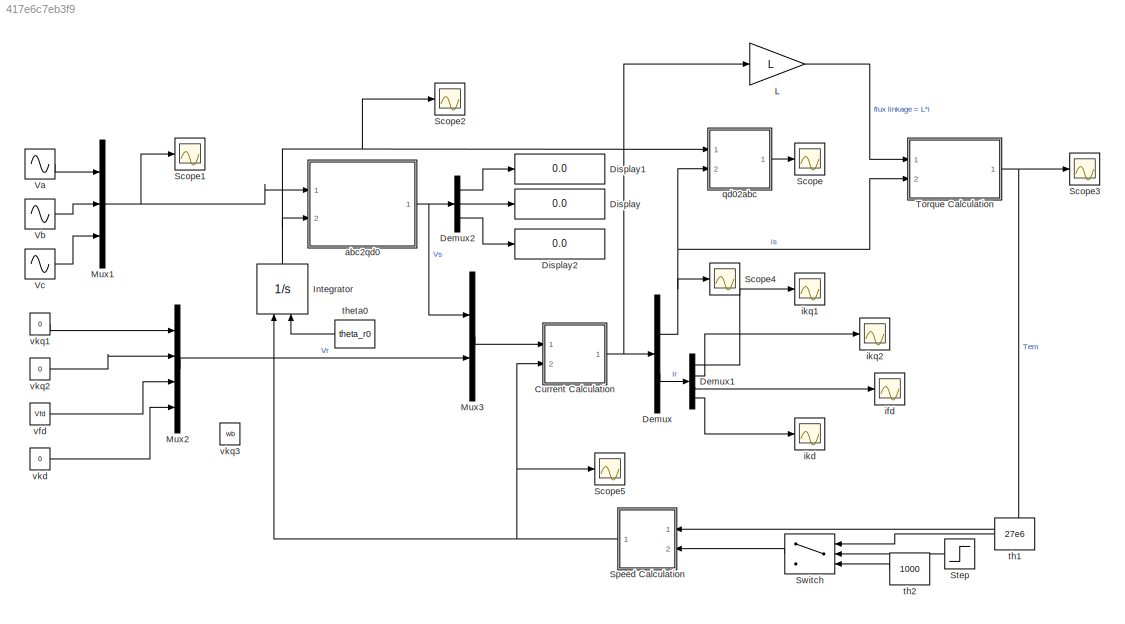
MODEL slx_417e6c7eb3f9
KIND model
CONFIG AbsTol = auto
CONFIG EnableMultiTasking = off
CONFIG FixedStep = auto
CONFIG MaxStep = auto
CONFIG MinStep = auto
CONFIG RelTol = 1e-6
CONFIG SampleTimeConstraint = Unconstrained
CONFIG Solver = ode23
CONFIG SolverName = ode23
CONFIG StartTime = 0.0
CONFIG StopTime = 20
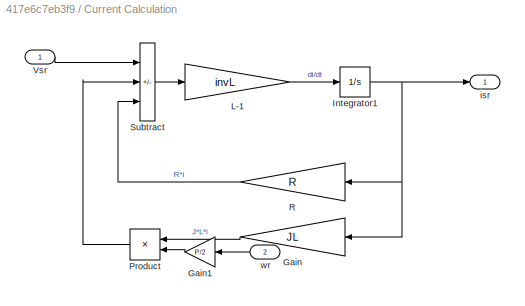
BLOCK [SubSystem] Current Calculation
  Ports = [2, 1]
  RequestExecContextInheritance = off
BLOCK [Gain] Current Calculation/Gain
  Gain = JL
  Multiplication = Matrix(K*u) (u vector)
BLOCK [Gain] Current Calculation/Gain1
  Gain = P/2
BLOCK [Integrator] Current Calculation/Integrator1
  InitialCondition = [iqs;ids;0;0;0;i_f;0]
  Ports = [1, 1]
BLOCK [Gain] Current Calculation/L-1
  Gain = invL
  Multiplication = Matrix(K*u) (u vector)
BLOCK [Product] Current Calculation/Product
  Ports = [2, 1]
BLOCK [Gain] Current Calculation/R
  Gain = R
  Multiplication = Matrix(K*u) (u vector)
BLOCK [Sum] Current Calculation/Subtract
  IconShape = rectangular
  Inputs = +--
  Ports = [3, 1]
BLOCK [Inport] Current Calculation/Vsr
BLOCK [Outport] Current Calculation/isr
BLOCK [Inport] Current Calculation/wr
  Port = 2
BLOCK [Demux] Demux
  Outputs = [3 4]
  Ports = [1, 2]
BLOCK [Demux] Demux1
  Ports = [1, 4]
BLOCK [Demux] Demux2
  Outputs = 3
  Ports = [1, 3]
BLOCK [Display] Display
  Decimation = 1
  Ports = [1]
BLOCK [Display] Display1
  Decimation = 1
  Ports = [1]
BLOCK [Display] Display2
  Decimation = 1
  Ports = [1]
BLOCK [Integrator] Integrator
  InitialConditionSource = external
  NameLocation = right
  Ports = [2, 1]
BLOCK [Gain] L
  Gain = L
  Multiplication = Matrix(K*u) (u vector)
BLOCK [Mux] Mux1
  DisplayOption = bar
  Inputs = 3
  Ports = [3, 1]
BLOCK [Mux] Mux2
  DisplayOption = bar
  Ports = [4, 1]
BLOCK [Mux] Mux3
  DisplayOption = bar
  Inputs = [3 4]
  Ports = [2, 1]
BLOCK [Scope] Scope
  Floating = off
  NumInputPorts = 1
  Ports = [1]
  ScopeSpecificationString = Simulink.scopes.TimeScopeBlockCfg('CurrentConfiguration', extmgr.ConfigurationSet(extmgr.Configuration('Core','General UI',true),extmgr.Configuration('Core','Source UI',true),extmgr.Configuration('Sources','WiredSimulink',true,'SampleTime','0.001'),extmgr.Configuration('Visuals','Time Domain',true,'SerializedDisplays',{struct('MinYLimReal','-20057.24735','MaxYLimReal','20045.93005','YLabelReal',''...<+1502ch>
BLOCK [Scope] Scope1
  Floating = off
  NumInputPorts = 1
  Ports = [1]
  ScopeSpecificationString = Simulink.scopes.TimeScopeBlockCfg('CurrentConfiguration', extmgr.ConfigurationSet(extmgr.Configuration('Core','General UI',true),extmgr.Configuration('Core','Source UI',true),extmgr.Configuration('Sources','WiredSimulink',true,'DataLoggingVariableName','ScopeData1'),extmgr.Configuration('Visuals','Time Domain',true,'SerializedDisplays',{struct('MinYLimReal','-20412.41452','MaxYLimReal','20412.4145...<+1607ch>
BLOCK [Scope] Scope2
  Floating = off
  NumInputPorts = 1
  Ports = [1]
  ScopeSpecificationString = Simulink.scopes.TimeScopeBlockCfg('CurrentConfiguration', extmgr.ConfigurationSet(extmgr.Configuration('Core','General UI',true),extmgr.Configuration('Core','Source UI',true),extmgr.Configuration('Sources','WiredSimulink',true,'DataLoggingVariableName','ScopeData1'),extmgr.Configuration('Visuals','Time Domain',true,'SerializedDisplays',{struct('MinYLimReal','-29.45057','MaxYLimReal','265.05516','Y...<+1543ch>
BLOCK [Scope] Scope3
  Floating = off
  NumInputPorts = 1
  Ports = [1]
  ScopeSpecificationString = Simulink.scopes.TimeScopeBlockCfg('CurrentConfiguration', extmgr.ConfigurationSet(extmgr.Configuration('Core','General UI',true),extmgr.Configuration('Core','Source UI',true),extmgr.Configuration('Sources','WiredSimulink',true,'SampleTime','0.01','DataLoggingVariableName','ScopeData3'),extmgr.Configuration('Visuals','Time Domain',true,'SerializedDisplays',{struct('MinYLimReal','-36508802.79877','M...<+1535ch>
BLOCK [Scope] Scope4
  Floating = off
  NumInputPorts = 1
  Ports = [1]
  ScopeSpecificationString = Simulink.scopes.TimeScopeBlockCfg('CurrentConfiguration', extmgr.ConfigurationSet(extmgr.Configuration('Core','General UI',true),extmgr.Configuration('Core','Source UI',true),extmgr.Configuration('Sources','WiredSimulink',true,'SampleTime','0.01','DataLoggingVariableName','ScopeData4'),extmgr.Configuration('Visuals','Time Domain',true,'SerializedDisplays',{struct('MinYLimReal','-4578.64771','MaxYL...<+1584ch>
BLOCK [Scope] Scope5
  Floating = off
  NumInputPorts = 1
  Ports = [1]
  ScopeSpecificationString = Simulink.scopes.TimeScopeBlockCfg('CurrentConfiguration', extmgr.ConfigurationSet(extmgr.Configuration('Core','General UI',true),extmgr.Configuration('Core','Source UI',true),extmgr.Configuration('Sources','WiredSimulink',true,'DataLoggingVariableName','ScopeData1'),extmgr.Configuration('Visuals','Time Domain',true,'SerializedDisplays',{struct('MinYLimReal','11.71075','MaxYLimReal','11.80822','YLa...<+1480ch>
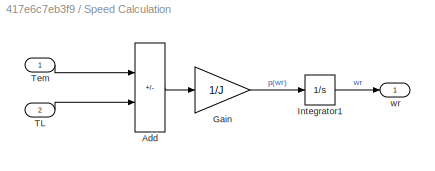
BLOCK [SubSystem] Speed Calculation
  Ports = [2, 1]
  RequestExecContextInheritance = off
BLOCK [Sum] Speed Calculation/Add
  IconShape = rectangular
  Inputs = +-
  Ports = [2, 1]
BLOCK [Gain] Speed Calculation/Gain
  Gain = 1/J
BLOCK [Integrator] Speed Calculation/Integrator1
  InitialCondition = wb
  Ports = [1, 1]
BLOCK [Inport] Speed Calculation/TL
  Port = 2
BLOCK [Inport] Speed Calculation/Tem
BLOCK [Outport] Speed Calculation/wr
BLOCK [Step] Step
  SampleTime = 0
  Time = 4
BLOCK [Switch] Switch
  Criteria = u2 > Threshold
  InputSameDT = off
  SaturateOnIntegerOverflow = off
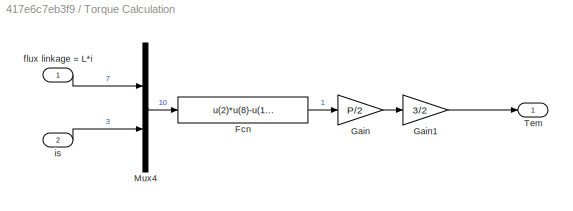
BLOCK [SubSystem] Torque Calculation
  Ports = [2, 1]
  RequestExecContextInheritance = off
BLOCK [Fcn] Torque Calculation/Fcn
  Expr = u(2)*u(8)-u(1)*u(9)
BLOCK [Gain] Torque Calculation/Gain
  Gain = P/2
BLOCK [Gain] Torque Calculation/Gain1
  Gain = 3/2
BLOCK [Mux] Torque Calculation/Mux4
  DisplayOption = bar
  Inputs = [7 3]
  Ports = [2, 1]
BLOCK [Outport] Torque Calculation/Tem
BLOCK [Inport] Torque Calculation/flux linkage = L*i
BLOCK [Inport] Torque Calculation/is
  Port = 2
BLOCK [Sin] Va
  Amplitude = Vs_abc
  Frequency = f_abc*2*pi
  Phase = theta_e0+pi/2
  Ports = [0, 1]
  SampleTime = 0
BLOCK [Sin] Vb 
  Amplitude = Vs_abc
  Frequency = f_abc*2*pi
  Phase = theta_e0-2*pi/3+pi/2
  Ports = [0, 1]
  SampleTime = 0
BLOCK [Sin] Vc
  Amplitude = Vs_abc
  Frequency = f_abc*2*pi
  Phase = theta_e0+2*pi/3+pi/2
  Ports = [0, 1]
  SampleTime = 0
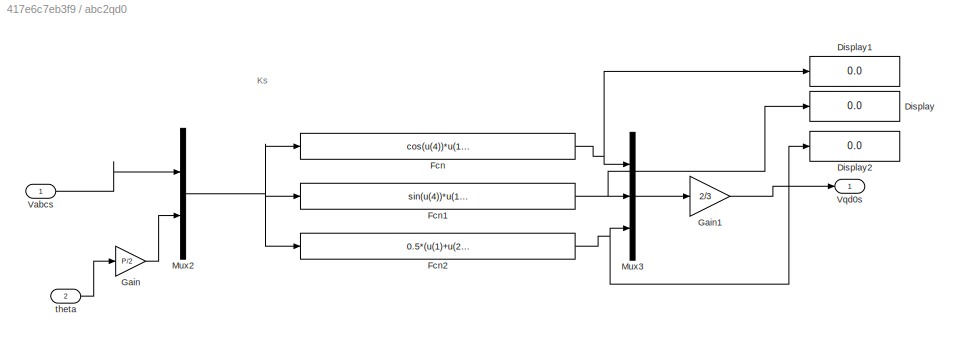
BLOCK [SubSystem] abc2qd0
  Ports = [2, 1]
  RequestExecContextInheritance = off
BLOCK [Display] abc2qd0/Display
  Decimation = 1
  Ports = [1]
BLOCK [Display] abc2qd0/Display1
  Decimation = 1
  Ports = [1]
BLOCK [Display] abc2qd0/Display2
  Decimation = 1
  Ports = [1]
BLOCK [Fcn] abc2qd0/Fcn
  Expr = cos(u(4))*u(1)+cos(u(4)-2*pi/3)*u(2)+cos(u(4)+2*pi/3)*u(3)
BLOCK [Fcn] abc2qd0/Fcn1
  Expr = sin(u(4))*u(1)+sin(u(4)-2*pi/3)*u(2)+sin(u(4)+2*pi/3)*u(3)
BLOCK [Fcn] abc2qd0/Fcn2
  Expr = 0.5*(u(1)+u(2)+u(3))
BLOCK [Gain] abc2qd0/Gain
  Gain = P/2
BLOCK [Gain] abc2qd0/Gain1
  Gain = 2/3
BLOCK [Mux] abc2qd0/Mux2
  DisplayOption = bar
  Inputs = [3 1]
  Ports = [2, 1]
BLOCK [Mux] abc2qd0/Mux3
  DisplayOption = bar
  Inputs = 3
  Ports = [3, 1]
BLOCK [Inport] abc2qd0/Vabcs
BLOCK [Outport] abc2qd0/Vqd0s
BLOCK [Inport] abc2qd0/theta 
  Port = 2
BLOCK [Scope] ifd
  Floating = off
  NumInputPorts = 1
  Ports = [1]
  ScopeSpecificationString = Simulink.scopes.TimeScopeBlockCfg('CurrentConfiguration', extmgr.ConfigurationSet(extmgr.Configuration('Core','General UI',true),extmgr.Configuration('Core','Source UI',true),extmgr.Configuration('Sources','WiredSimulink',true,'SampleTime','0.01','DataLoggingVariableName','ScopeData3'),extmgr.Configuration('Visuals','Time Domain',true,'SerializedDisplays',{struct('MinYLimReal','-7589.26949','MaxYL...<+1511ch>
BLOCK [Scope] ikd
  Floating = off
  NumInputPorts = 1
  Ports = [1]
  ScopeSpecificationString = Simulink.scopes.TimeScopeBlockCfg('CurrentConfiguration', extmgr.ConfigurationSet(extmgr.Configuration('Core','General UI',true),extmgr.Configuration('Core','Source UI',true),extmgr.Configuration('Sources','WiredSimulink',true,'SampleTime','0.01','DataLoggingVariableName','ScopeData4'),extmgr.Configuration('Visuals','Time Domain',true,'SerializedDisplays',{struct('MinYLimReal','-26713.83894','MaxY...<+1463ch>
BLOCK [Scope] ikq1
  Floating = off
  NumInputPorts = 1
  Ports = [1]
  ScopeSpecificationString = Simulink.scopes.TimeScopeBlockCfg('CurrentConfiguration', extmgr.ConfigurationSet(extmgr.Configuration('Core','General UI',true),extmgr.Configuration('Core','Source UI',true),extmgr.Configuration('Sources','WiredSimulink',true,'SampleTime','0.01','DataLoggingVariableName','ScopeData1'),extmgr.Configuration('Visuals','Time Domain',true,'SerializedDisplays',{struct('MinYLimReal','-39767.69182','MaxY...<+1486ch>
BLOCK [Scope] ikq2
  Floating = off
  NumInputPorts = 1
  Ports = [1]
  ScopeSpecificationString = Simulink.scopes.TimeScopeBlockCfg('CurrentConfiguration', extmgr.ConfigurationSet(extmgr.Configuration('Core','General UI',true),extmgr.Configuration('Core','Source UI',true),extmgr.Configuration('Sources','WiredSimulink',true,'SampleTime','0.01','DataLoggingVariableName','ScopeData2'),extmgr.Configuration('Visuals','Time Domain',true,'SerializedDisplays',{struct('MinYLimReal','-39767.69182','MaxY...<+1461ch>
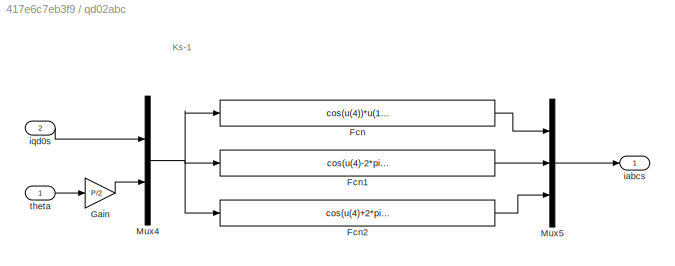
BLOCK [SubSystem] qd02abc
  Ports = [2, 1]
  RequestExecContextInheritance = off
BLOCK [Fcn] qd02abc/Fcn
  Expr = cos(u(4))*u(1)+sin(u(4))*u(2)+u(3)
BLOCK [Fcn] qd02abc/Fcn1
  Expr = cos(u(4)-2*pi/3)*u(1)+sin(u(4)-2*pi/3)*u(2)+u(3)
BLOCK [Fcn] qd02abc/Fcn2
  Expr = cos(u(4)+2*pi/3)*u(1)+sin(u(4)+2*pi/3)*u(2)+u(3)
BLOCK [Gain] qd02abc/Gain
  Gain = P/2
BLOCK [Mux] qd02abc/Mux4
  DisplayOption = bar
  Inputs = [3 1]
  Ports = [2, 1]
BLOCK [Mux] qd02abc/Mux5
  DisplayOption = bar
  Inputs = 3
  Ports = [3, 1]
BLOCK [Outport] qd02abc/iabcs
BLOCK [Inport] qd02abc/iqd0s
  Port = 2
BLOCK [Inport] qd02abc/theta
BLOCK [Constant] th1
  Value = 27e6
BLOCK [Constant] th2
  Value = 1000
BLOCK [Constant] theta0
  Value = theta_r0
BLOCK [Constant] vfd
  Value = Vfd
BLOCK [Constant] vkd
  Value = 0
BLOCK [Constant] vkq1
  Value = 0
BLOCK [Constant] vkq2
  Value = 0
BLOCK [Constant] vkq3
  Value = wb
ANNOTATION abc2qd0: Ks
ANNOTATION qd02abc: Ks-1
LINE Current Calculation/Gain1:1 -> Current Calculation/Product:2
LINE Current Calculation/Gain:1 -> Current Calculation/Product:1
NET Current Calculation/Integrator1:1 -> Current Calculation/Gain:1, Current Calculation/R:1, Current Calculation/isr:1
LINE Current Calculation/L-1:1 -> Current Calculation/Integrator1:1
LINE Current Calculation/Product:1 -> Current Calculation/Subtract:2
LINE Current Calculation/R:1 -> Current Calculation/Subtract:3
LINE Current Calculation/Subtract:1 -> Current Calculation/L-1:1
LINE Current Calculation/Vsr:1 -> Current Calculation/Subtract:1
LINE Current Calculation/wr:1 -> Current Calculation/Gain1:1
NET Current Calculation:1 -> Demux:1, L:1
LINE Demux1:1 -> ikq1:1
LINE Demux1:2 -> ikq2:1
LINE Demux1:3 -> ifd:1
LINE Demux1:4 -> ikd:1
LINE Demux2:1 -> Display1:1
LINE Demux2:2 -> Display:1
LINE Demux2:3 -> Display2:1
NET Demux:1 -> Scope4:1, Torque Calculation:2, qd02abc:2
LINE Demux:2 -> Demux1:1
NET Integrator:1 -> Scope2:1, abc2qd0:2, qd02abc:1
LINE L:1 -> Torque Calculation:1
NET Mux1:1 -> Scope1:1, abc2qd0:1
LINE Mux2:1 -> Mux3:2
LINE Mux3:1 -> Current Calculation:1
LINE Speed Calculation/Add:1 -> Speed Calculation/Gain:1
LINE Speed Calculation/Gain:1 -> Speed Calculation/Integrator1:1
LINE Speed Calculation/Integrator1:1 -> Speed Calculation/wr:1
LINE Speed Calculation/TL:1 -> Speed Calculation/Add:2
LINE Speed Calculation/Tem:1 -> Speed Calculation/Add:1
NET Speed Calculation:1 -> Current Calculation:2, Integrator:1, Scope5:1
LINE Step:1 -> Switch:2
LINE Switch:1 -> Speed Calculation:2
LINE Torque Calculation/Fcn:1 -> Torque Calculation/Gain:1
LINE Torque Calculation/Gain1:1 -> Torque Calculation/Tem:1
LINE Torque Calculation/Gain:1 -> Torque Calculation/Gain1:1
LINE Torque Calculation/Mux4:1 -> Torque Calculation/Fcn:1
LINE Torque Calculation/flux linkage = L*i:1 -> Torque Calculation/Mux4:1
LINE Torque Calculation/is:1 -> Torque Calculation/Mux4:2
NET Torque Calculation:1 -> Scope3:1, Speed Calculation:1
LINE Va:1 -> Mux1:1
LINE Vb :1 -> Mux1:2
LINE Vc:1 -> Mux1:3
NET abc2qd0/Fcn1:1 -> abc2qd0/Display:1, abc2qd0/Mux3:2
NET abc2qd0/Fcn2:1 -> abc2qd0/Display2:1, abc2qd0/Mux3:3
NET abc2qd0/Fcn:1 -> abc2qd0/Display1:1, abc2qd0/Mux3:1
LINE abc2qd0/Gain1:1 -> abc2qd0/Vqd0s:1
LINE abc2qd0/Gain:1 -> abc2qd0/Mux2:2
NET abc2qd0/Mux2:1 -> abc2qd0/Fcn1:1, abc2qd0/Fcn2:1, abc2qd0/Fcn:1
LINE abc2qd0/Mux3:1 -> abc2qd0/Gain1:1
LINE abc2qd0/Vabcs:1 -> abc2qd0/Mux2:1
LINE abc2qd0/theta :1 -> abc2qd0/Gain:1
NET abc2qd0:1 -> Demux2:1, Mux3:1
LINE qd02abc/Fcn1:1 -> qd02abc/Mux5:2
LINE qd02abc/Fcn2:1 -> qd02abc/Mux5:3
LINE qd02abc/Fcn:1 -> qd02abc/Mux5:1
LINE qd02abc/Gain:1 -> qd02abc/Mux4:2
NET qd02abc/Mux4:1 -> qd02abc/Fcn1:1, qd02abc/Fcn2:1, qd02abc/Fcn:1
LINE qd02abc/Mux5:1 -> qd02abc/iabcs:1
LINE qd02abc/iqd0s:1 -> qd02abc/Mux4:1
LINE qd02abc/theta:1 -> qd02abc/Gain:1
LINE qd02abc:1 -> Scope:1
LINE th1:1 -> Switch:1
LINE th2:1 -> Switch:3
LINE theta0:1 -> Integrator:2
LINE vfd:1 -> Mux2:3
LINE vkd:1 -> Mux2:4
LINE vkq1:1 -> Mux2:1
LINE vkq2:1 -> Mux2:2
note: NET lines group one-source signal fan-out (src -> all destinations, sorted); 1:1 wires keep LINE
